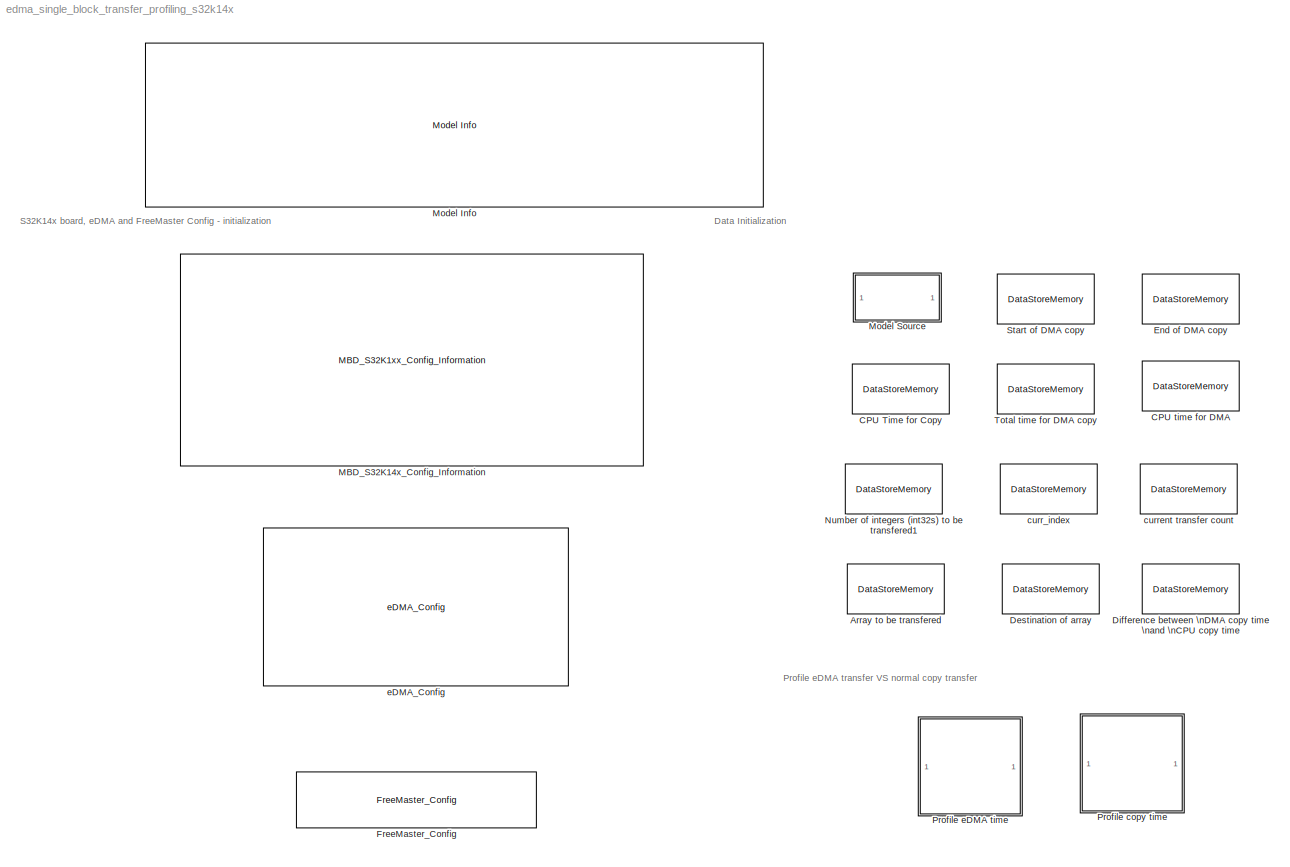
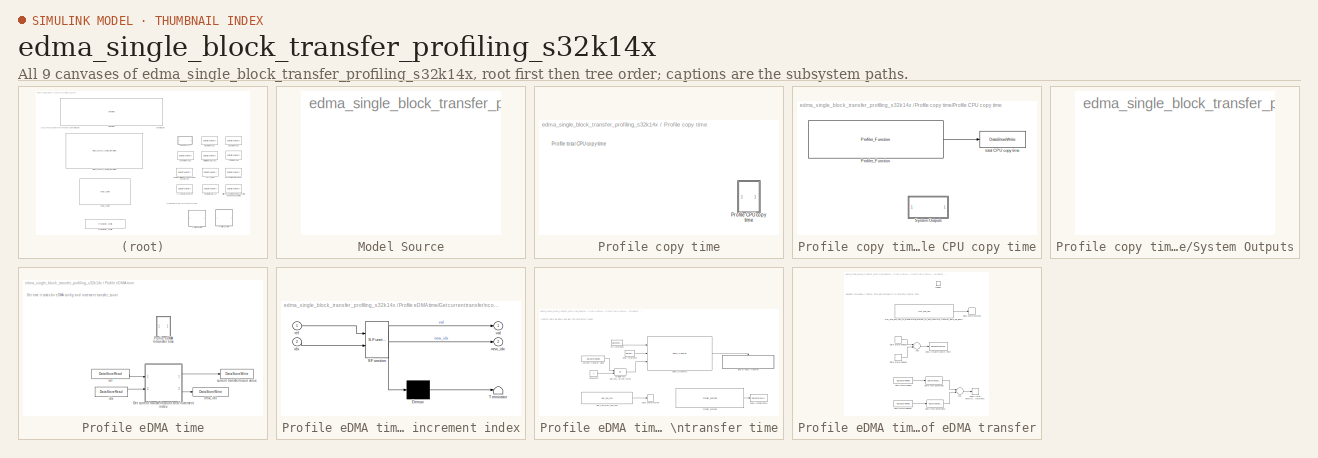
[diagram: thumbnail index - all 9 canvases of the model, root first then tree order]
MODEL edma_single_block_transfer_profiling_s32k14x
KIND model
CONFIG InitFcn = mbd_s32k_consistency_checks(bdroot(gcs));
BLOCK [DataStoreMemory] Array to be transfered
  DataStoreName = src
  ReadBeforeWriteMsg = warning
  SID = 134
  ShowAdditionalParam = off
  WriteAfterReadMsg = warning
  WriteAfterWriteMsg = warning
BLOCK [DataStoreMemory] CPU Time for Copy
  DataStoreName = profiler_copy_time
  OutDataTypeStr = uint32
  ReadBeforeWriteMsg = warning
  SID = 51
  ShowAdditionalParam = off
  WriteAfterReadMsg = warning
  WriteAfterWriteMsg = warning
BLOCK [DataStoreMemory] CPU time for DMA
  DataStoreName = profiler_dma_cpu
  OutDataTypeStr = uint32
  ReadBeforeWriteMsg = warning
  SID = 41
  ShowAdditionalParam = off
  WriteAfterReadMsg = warning
  WriteAfterWriteMsg = warning
BLOCK [DataStoreMemory] Destination of array
  DataStoreName = dest
  ReadBeforeWriteMsg = warning
  SID = 135
  ShowAdditionalParam = off
  WriteAfterReadMsg = warning
  WriteAfterWriteMsg = warning
BLOCK [DataStoreMemory] Difference between \nDMA copy time \nand \nCPU copy time
  DataStoreName = diff
  OutDataTypeStr = int32
  ReadBeforeWriteMsg = warning
  SID = 138
  ShowAdditionalParam = off
  WriteAfterReadMsg = warning
  WriteAfterWriteMsg = warning
BLOCK [DataStoreMemory] End of DMA copy
  DataStoreName = finish
  ReadBeforeWriteMsg = warning
  SID = 112
  ShowAdditionalParam = off
  WriteAfterReadMsg = warning
  WriteAfterWriteMsg = warning
BLOCK [Reference] FreeMaster_Config  REF=mbd_s32k1xx_ec_toolbox/Utility Blocks/FreeMaster_Config
  Ports = []
  SID = 40
  SourceBlock = mbd_s32k1xx_ec_toolbox/Utility Blocks/FreeMaster_Config
  SourceType = fm_s32k_config
  baudrate = 115200
  comm_buffer_size = 255
  comm_buffer_size_auto = on
  comm_rqueue_size = 32
  comm_rqueue_size_default = on
  interface = LPUART1
  isr_prio = 5
  max_rec_vars = 8
  max_scope_vars = 8
  mode = Short Interrupt
  rec_buff_size = 1024
  rec_timebase = 0
  rec_timebase_unit = milliseconds
  rxd = PTC6: [LPUART1_RX | Receive]
  show_adv_opts = on
  txd = PTC7: [LPUART1_TX | Transmit]
  use_recorder = on
  use_scope = on
BLOCK [Reference] MBD_S32K14x_Config_Information  REF=mbd_s32k1xx_ec_toolbox/MBD_S32K1xx_Config_Information
  ADC_PcrCheckEnDis = on
  AMMCLIB_PcrCheckEnDis = on
  CMP_PcrCheckEnDis = on
  CSEc_PcrCheckEnDis = on
  ConfigParams_PcrCheckEnDis = on
  FM_PcrCheckEnDis = on
  FTM_Dual_Edge_Inputs_PcrCheckEnDis = on
  FTM_Hall_Sensor_Inputs_PcrCheckEnDis = on
  FTM_Input_Edge_Inputs_PcrCheckEnDis = on
  FTM_PWM_PcrCheckEnDis = on
  FTM_Quadrature_Inputs_PcrCheckEnDis = on
  FlexCAN_PcrCheckEnDis = on
  FlexIO_PcrCheckEnDis = on
  GPIO_InputPcrCheckEnDis = on
  GPIO_OutputPcrCheckEnDis = on
  LIN_PcrCheckEnDis = on
  LPI2C_PcrCheckEnDis = on
  LPSPI_PcrCheckEnDis = on
  LPTMR_PcrCheckEnDis = on
  LPUART_PcrCheckEnDis = on
  ModelRef_PcrCheckEnDis = on
  PDB0_PcrCheckEnDis = on
  PIT_PcrCheckEnDis = on
  Ports = []
  Priority = 1
  Profile_PcrCheckEnDis = on
  RTC_PcrCheckEnDis = on
  SBC_PcrCheckEnDis = on
  SID = 2
  SourceBlock = mbd_s32k1xx_ec_toolbox/MBD_S32K1xx_Config_Information
  SourceType = MBDTBX_EC_S32K
  WDOG_PcrCheckEnDis = on
  config_params = []
  disp_str = Target : S32K144-64KB_SRAM\nPackage : 100-pin\nSystem clock : 80 MHz\nXTAL clock : External 8 MHz\nCompiler : GCC\nTarget Type : FLASH\nDownload Code after build : off\nStep Tick Interrupt Priority : 15
  ds_import_enable = on
  eDMA_PcrCheckEnDis = on
  gcc_target_assemble_opts = -mcpu=cortex-m4 -mthumb -mfloat-abi=hard -mfpu=fpv4-sp-d16 -g
  gcc_target_compile_opts = -mcpu=cortex-m4 -mthumb -mfloat-abi=hard -mfpu=fpv4-sp-d16 -O1 -g -gstrict-dwarf
  gcc_target_default_lcf = on
  gcc_target_link_opts = -mcpu=cortex-m4 -mthumb -mfloat-abi=hard -mfpu=fpv4-sp-d16
  gcc_target_user_lcf = S32K144_64_flash.ld
  ghs_target_assemble_opts = -cpu=cortexm4f -fpu=vfpv4_d16
  ghs_target_compile_opts = -cpu=cortexm4f -thumb -DARM_MATH_CM4 -fpu=vfpv4_d16 -fsingle -Ogeneral -Wundef -Wimplicit-int -Wshadow -Wtrigraphs --no_commons --gnu_asm -gnu99 -gdwarf-2 -G
  ghs_target_default_lcf = off
  ghs_target_link_opts = -cpu=cortexm4f -thumb -fpu=vfpv4_d16
  ghs_target_user_lcf = S32K144_64_flash.ld
  iar_target_assemble_opts = --cpu Cortex-M4F --thumb --fpu VFPv4_sp
  iar_target_compile_opts = --cpu=Cortex-M4F --thumb --fpu=VFPv4_sp -Ol -e --debug --dlib_config normal
  iar_target_default_lcf = off
  iar_target_link_opts = --no_exceptions --vfe --inline
  iar_target_user_lcf = S32K144_64_flash.icf
  mbdt_ver = 0
  mcu_steptick_prio = 15
  mcu_steptick_timer = LPIT Channel 0
  mcu_system_clock_freq = 80
  mcu_target_name = S32K144
  mcu_target_package = 100-LQFP
  mcu_target_sram_size = 64KB
  mcu_xtal_freq = External 8
  pil_download_enable = off
  pil_download_rate = 57600
  pil_opensda_drive = Custom
  pil_opensda_drive_custom = D
  pil_uart_instance = 0
  pil_uart_rx = PTA2: [LPUART0_RX | Receive]
  pil_uart_tx = PTA3: [LPUART0_TX | Transmit]
  rbl_com_port = Custom
  rbl_com_port_custom = COM1
  rbl_download_enable = on
  rbl_download_interface = OpenSDA
  rbl_restart_request = off
  rbl_start_delay = 5000000
  target_compiler = GCC
  target_memory = FLASH
BLOCK [Reference] Model Info  REF=simulink/Model-Wide\nUtilities/Model Info
  DisplayStringWithTags = Model Name: %<ModelName>\n\nDescription: %<Description>
  Frame = off
  HorizontalTextAlignment = Left
  LeftAlignmentValue = 0.02
  MaskDisplayString = Model Name: edma_single_block_transfer_profiling_s32k14x\\n\\nDescription: Comparison betwen data transfer using eDMA and normal cpu copy.\\n\\nTransfer sizes used are as follows:\\n4, 8, 16, 32, 64, 128, 256, 512, 768, 1024 uint32s (multiply by 4 to get number of bytes)\\n\\nTransfer size is changed at every step, iterating circulary over this list.\\n\\nVerification:\\nOpen freeMaster project (h...<+86ch>
  Ports = []
  SID = 183
  SourceBlock = simulink/Model-Wide\nUtilities/Model Info
  SourceProductBaseCode = SL
  SourceProductName = Simulink
  SourceType = CMBlock
BLOCK [SubSystem] Model Source
  CopyFcn = cccopyfcn(gcb)
  OpenFcn = ccopenfcn('Model Source')
  Ports = []
  RequestExecContextInheritance = off
  SID = 53
  Variant = off
BLOCK [DataStoreMemory] Number of integers (int32s) to be transfered1
  DataStoreName = transfer_count_ref
  InitialValue = [4,8,16,32,64,128,256,512,768,1024]
  OutDataTypeStr = uint32
  ReadBeforeWriteMsg = warning
  SID = 157
  ShowAdditionalParam = off
  WriteAfterReadMsg = warning
  WriteAfterWriteMsg = warning
BLOCK [SubSystem] Profile copy time
  Ports = []
  Priority = 2
  RequestExecContextInheritance = off
  SID = 44
  Variant = off
BLOCK [SubSystem] Profile copy time/Profile CPU copy time
  Ports = []
  RTWSystemCode = Reusable function
  RequestExecContextInheritance = off
  SID = 78
  TreatAsAtomicUnit = on
  Variant = off
BLOCK [Reference] Profile copy time/Profile CPU copy time/Profiler_Function  REF=mbd_s32k1xx_ec_toolbox/Utility Blocks/Profiler_Function
  Ports = [0, 1]
  Priority = 1
  SID = 90
  SourceBlock = mbd_s32k1xx_ec_toolbox/Utility Blocks/Profiler_Function
  SourceType = profiler_s32k_func
  profile_indx = 2
  showOut = on
BLOCK [SubSystem] Profile copy time/Profile CPU copy time/System Outputs
  CopyFcn = cccopyfcn(gcb)
  FunctionInterfaceSpec = Allow arguments
  FunctionWithSeparateData = on
  OpenFcn = ccopenfcn('System Outputs Function')
  Ports = []
  Priority = 12
  RTWSystemCode = Reusable function
  RequestExecContextInheritance = off
  SID = 81
  Variant = off
BLOCK [DataStoreWrite] Profile copy time/Profile CPU copy time/total CPU copy time
  DataStoreName = profiler_copy_time
  Ports = [1]
  Priority = 15
  SID = 48
BLOCK [SubSystem] Profile eDMA time
  FunctionWithSeparateData = on
  Ports = []
  Priority = 3
  RTWSystemCode = Nonreusable function
  RequestExecContextInheritance = off
  SID = 84
  Variant = off
BLOCK [SubSystem] Profile eDMA time/Get current transfer\ncount and increment index
  ErrorFcn = Stateflow.Translate.translate
  PermitHierarchicalResolution = ExplicitOnly
  Ports = [2, 2]
  RequestExecContextInheritance = off
  SFBlockType = MATLAB Function
  SID = 104
  TreatAsAtomicUnit = on
  Variant = off
BLOCK [Demux] Profile eDMA time/Get current transfer\ncount and increment index/ Demux 
  Outputs = 1
  Ports = [1, 1]
  SID = 104::34
BLOCK [S-Function] Profile eDMA time/Get current transfer\ncount and increment index/ SFunction 
  EnableBusSupport = off
  FunctionName = sf_sfun
  PortCounts = [2 3]
  Ports = [2, 3]
  SFcnIsStateOwnerBlock = off
  SFunctionDeploymentMode = off
  SID = 104::33
  Tag = Stateflow S-Function edma_single_block_transfer_profiling_s32k14x 2
BLOCK [Terminator] Profile eDMA time/Get current transfer\ncount and increment index/ Terminator 
  SID = 104::35
BLOCK [Inport] Profile eDMA time/Get current transfer\ncount and increment index/idx
  IconDisplay = Port number
  Port = 2
  SID = 104::19
BLOCK [Outport] Profile eDMA time/Get current transfer\ncount and increment index/new_idx
  IconDisplay = Port number
  Port = 2
  SID = 104::20
BLOCK [Inport] Profile eDMA time/Get current transfer\ncount and increment index/ref
  IconDisplay = Port number
  SID = 104::1
BLOCK [Outport] Profile eDMA time/Get current transfer\ncount and increment index/val
  IconDisplay = Port number
  SID = 104::5
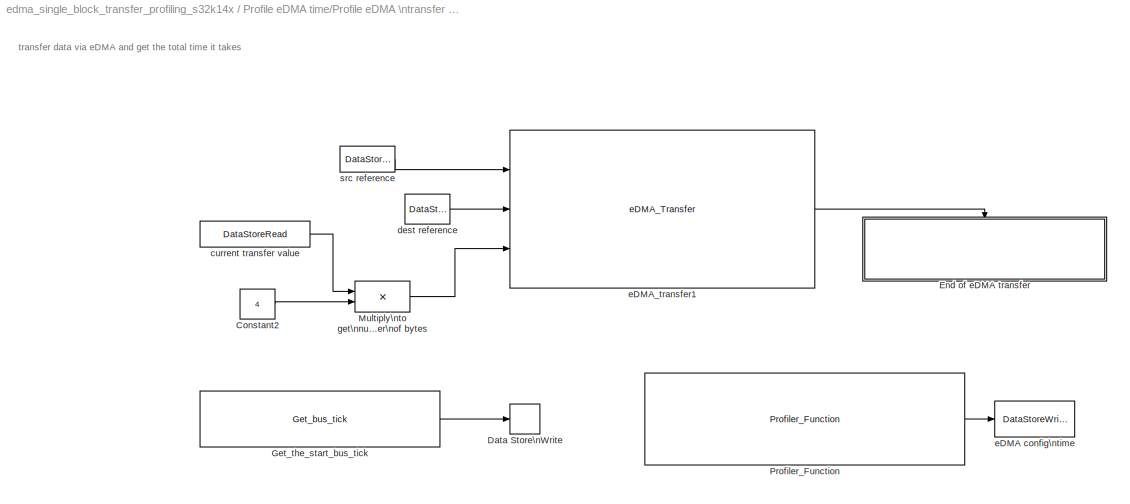
BLOCK [SubSystem] Profile eDMA time/Profile eDMA \ntransfer time
  FunctionWithSeparateData = on
  Ports = []
  RTWSystemCode = Nonreusable function
  RequestExecContextInheritance = off
  SID = 43
  TreatAsAtomicUnit = on
  Variant = off
BLOCK [Constant] Profile eDMA time/Profile eDMA \ntransfer time/Constant2
  OutDataTypeStr = uint32
  SID = 18
  Value = 4
BLOCK [DataStoreWrite] Profile eDMA time/Profile eDMA \ntransfer time/Data Store\nWrite
  DataStoreName = start
  Ports = [1]
  SID = 114
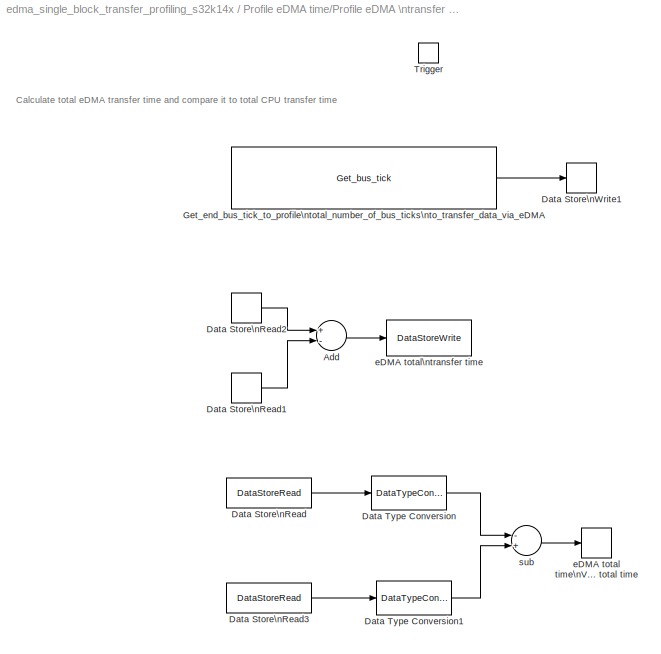
BLOCK [SubSystem] Profile eDMA time/Profile eDMA \ntransfer time/End of eDMA transfer
  Ports = [0, 0, 0, 1]
  RequestExecContextInheritance = off
  SID = 106
  Variant = off
BLOCK [Sum] Profile eDMA time/Profile eDMA \ntransfer time/End of eDMA transfer/Add
  InputSameDT = off
  Inputs = +-
  OutDataTypeStr = Inherit: Inherit via internal rule
  Ports = [2, 1]
  Priority = 5
  SID = 120
  SaturateOnIntegerOverflow = off
BLOCK [DataStoreRead] Profile eDMA time/Profile eDMA \ntransfer time/End of eDMA transfer/Data Store\nRead
  DataStoreName = dma_copy_time
  Ports = [0, 1]
  SID = 141
BLOCK [DataStoreRead] Profile eDMA time/Profile eDMA \ntransfer time/End of eDMA transfer/Data Store\nRead1
  DataStoreName = start
  Ports = [0, 1]
  SID = 118
BLOCK [DataStoreRead] Profile eDMA time/Profile eDMA \ntransfer time/End of eDMA transfer/Data Store\nRead2
  DataStoreName = finish
  Ports = [0, 1]
  SID = 119
BLOCK [DataStoreRead] Profile eDMA time/Profile eDMA \ntransfer time/End of eDMA transfer/Data Store\nRead3
  DataStoreName = profiler_copy_time
  Ports = [0, 1]
  SID = 143
BLOCK [DataStoreWrite] Profile eDMA time/Profile eDMA \ntransfer time/End of eDMA transfer/Data Store\nWrite1
  DataStoreName = finish
  Ports = [1]
  SID = 131
BLOCK [DataTypeConversion] Profile eDMA time/Profile eDMA \ntransfer time/End of eDMA transfer/Data Type Conversion
  OutDataTypeStr = int32
  RndMeth = Floor
  SID = 144
  SaturateOnIntegerOverflow = off
BLOCK [DataTypeConversion] Profile eDMA time/Profile eDMA \ntransfer time/End of eDMA transfer/Data Type Conversion1
  OutDataTypeStr = int32
  RndMeth = Floor
  SID = 145
  SaturateOnIntegerOverflow = off
BLOCK [Reference] Profile eDMA time/Profile eDMA \ntransfer time/End of eDMA transfer/Get_end_bus_tick_to_profile\ntotal_number_of_bus_ticks\nto_transfer_data_via_eDMA  REF=mbd_s32k1xx_ec_toolbox/Utility Blocks/Get_bus_tick
  Ports = [0, 1]
  Priority = 1
  SID = 105
  SourceBlock = mbd_s32k1xx_ec_toolbox/Utility Blocks/Get_bus_tick
  SourceType = get_bus_tick_s32k_func
BLOCK [TriggerPort] Profile eDMA time/Profile eDMA \ntransfer time/End of eDMA transfer/Trigger
  PortDimensions = 1
  Ports = []
  SID = 108
  StatesWhenEnabling = held
  TriggerType = function-call
  VariantControl = Variant
BLOCK [DataStoreWrite] Profile eDMA time/Profile eDMA \ntransfer time/End of eDMA transfer/eDMA total time\nVS\nCPU copy total time
  DataStoreName = diff
  Ports = [1]
  SID = 140
BLOCK [DataStoreWrite] Profile eDMA time/Profile eDMA \ntransfer time/End of eDMA transfer/eDMA total\ntransfer time
  DataStoreName = dma_copy_time
  Ports = [1]
  SID = 123
BLOCK [Sum] Profile eDMA time/Profile eDMA \ntransfer time/End of eDMA transfer/sub
  InputSameDT = off
  Inputs = -+
  OutDataTypeStr = Inherit: Inherit via internal rule
  Ports = [2, 1]
  Priority = 5
  SID = 142
  SaturateOnIntegerOverflow = off
BLOCK [Reference] Profile eDMA time/Profile eDMA \ntransfer time/Get_the_start_bus_tick  REF=mbd_s32k1xx_ec_toolbox/Utility Blocks/Get_bus_tick
  Ports = [0, 1]
  Priority = 1
  SID = 109
  SourceBlock = mbd_s32k1xx_ec_toolbox/Utility Blocks/Get_bus_tick
  SourceType = get_bus_tick_s32k_func
BLOCK [Product] Profile eDMA time/Profile eDMA \ntransfer time/Multiply\nto get\nnumber\nof bytes
  InputSameDT = off
  OutDataTypeStr = uint32
  Ports = [2, 1]
  Priority = 2
  RndMeth = Floor
  SID = 103
  SaturateOnIntegerOverflow = off
BLOCK [Reference] Profile eDMA time/Profile eDMA \ntransfer time/Profiler_Function  REF=mbd_s32k1xx_ec_toolbox/Utility Blocks/Profiler_Function
  Ports = [0, 1]
  SID = 25
  SourceBlock = mbd_s32k1xx_ec_toolbox/Utility Blocks/Profiler_Function
  SourceType = profiler_s32k_func
  profile_indx = 0
  showOut = on
BLOCK [DataStoreRead] Profile eDMA time/Profile eDMA \ntransfer time/current transfer value
  DataStoreName = transfer_count_val
  Ports = [0, 1]
  SID = 169
BLOCK [DataStoreRead] Profile eDMA time/Profile eDMA \ntransfer time/dest reference
  DataStoreName = dest
  Ports = [0, 1]
  Priority = 2
  SID = 175
BLOCK [DataStoreWrite] Profile eDMA time/Profile eDMA \ntransfer time/eDMA config\ntime
  DataStoreName = profiler_dma_cpu
  Ports = [1]
  SID = 42
BLOCK [Reference] Profile eDMA time/Profile eDMA \ntransfer time/eDMA_transfer1  REF=mbd_s32k1xx_ec_toolbox/Core and System Blocks/DMA Blocks/eDMA_Transfer
  Ports = [3, 1]
  Priority = 5
  SID = 14
  SourceBlock = mbd_s32k1xx_ec_toolbox/Core and System Blocks/DMA Blocks/eDMA_Transfer
  SourceType = edma_s32k_transfer
  bytes_on_each_req = 4
  channel = 0
  dest_list = {PTD_BASE + 0xc, 0x400FF0CC}
  dest_list_type = Address list
  dest_periph1 = ADC0
  dest_periph2 = ADC0
  dest_periph3 = ADC0
  dest_periph4 = ADC0
  dest_periph5 = ADC0
  dest_periph6 = ADC0
  dest_periph7 = ADC0
  dest_periph8 = ADC0
  dest_reg1 = SC1A
  dest_reg1_addr = 0x4003B000
  dest_reg1enable = off
  dest_reg1offset = 0
  dest_reg2 = SC1A
  dest_reg2_addr = 0x4003B000
  dest_reg2enable = off
  dest_reg2offset = 0
  dest_reg3 = SC1A
  dest_reg3_addr = 0x4003B000
  dest_reg3enable = off
  dest_reg3offset = 0
  dest_reg4 = SC1A
  dest_reg4_addr = 0x4003B000
  dest_reg4enable = off
  dest_reg4offset = 0
  dest_reg5 = SC1A
  dest_reg5_addr = 0x4003B000
  dest_reg5enable = off
  dest_reg5offset = 0
  dest_reg6 = SC1A
  dest_reg6_addr = 0x4003B000
  dest_reg6enable = off
  dest_reg6offset = 0
  dest_reg7 = SC1A
  dest_reg7_addr = 0x4003B000
  dest_reg7enable = off
  dest_reg7offset = 0
  dest_reg8 = SC1A
  dest_reg8_addr = 0x4003B000
  dest_reg8enable = off
  dest_reg8offset = 0
  sg_struct_size = 32
  single_block_dest_type = Dest input is an address
  single_block_src_type = Src input is an address
  src_list = {32768, 1}
  src_list_type = Value list
  src_periph1 = ADC0
  src_periph2 = ADC0
  src_periph3 = ADC0
  src_periph4 = ADC0
  src_periph5 = ADC0
  src_periph6 = ADC0
  src_periph7 = ADC0
  src_periph8 = ADC0
  src_reg1 = SC1A
  src_reg1_addr = 0x4003B000
  src_reg1enable = off
  src_reg1offset = 0
  src_reg2 = SC1A
  src_reg2_addr = 0x4003B000
  src_reg2enable = off
  src_reg2offset = 0
  src_reg3 = SC1A
  src_reg3_addr = 0x4003B000
  src_reg3enable = off
  src_reg3offset = 0
  src_reg4 = SC1A
  src_reg4_addr = 0x4003B000
  src_reg4enable = off
  src_reg4offset = 0
  src_reg5 = SC1A
  src_reg5_addr = 0x4003B000
  src_reg5enable = off
  src_reg5offset = 0
  src_reg6 = SC1A
  src_reg6_addr = 0x4003B000
  src_reg6enable = off
  src_reg6offset = 0
  src_reg7 = SC1A
  src_reg7_addr = 0x4003B000
  src_reg7enable = off
  src_reg7offset = 0
  src_reg8 = SC1A
  src_reg8_addr = 0x4003B000
  src_reg8enable = off
  src_reg8offset = 0
  transfer_mode = Single Block Transfer
  transfer_size = EDMA_TRANSFER_SIZE_4B
  transfer_type = EDMA_TRANSFER_MEM2MEM
BLOCK [DataStoreRead] Profile eDMA time/Profile eDMA \ntransfer time/src reference
  DataStoreName = src
  Ports = [0, 1]
  Priority = 2
  SID = 136
BLOCK [DataStoreWrite] Profile eDMA time/current transfer\ncout value
  DataStoreName = transfer_count_val
  Ports = [1]
  SID = 164
BLOCK [DataStoreRead] Profile eDMA time/idx
  DataStoreName = transfer_count_idx
  Ports = [0, 1]
  SID = 94
BLOCK [DataStoreWrite] Profile eDMA time/new_idx
  DataStoreName = transfer_count_idx
  Ports = [1]
  SID = 165
BLOCK [DataStoreRead] Profile eDMA time/ref
  DataStoreName = transfer_count_ref
  Ports = [0, 1]
  SID = 166
BLOCK [DataStoreMemory] Start of DMA copy
  DataStoreName = start
  ReadBeforeWriteMsg = warning
  SID = 111
  ShowAdditionalParam = off
  WriteAfterReadMsg = warning
  WriteAfterWriteMsg = warning
BLOCK [DataStoreMemory] Total time for DMA copy
  DataStoreName = dma_copy_time
  ReadBeforeWriteMsg = warning
  SID = 121
  ShowAdditionalParam = off
  WriteAfterReadMsg = warning
  WriteAfterWriteMsg = warning
BLOCK [DataStoreMemory] curr_index
  DataStoreName = transfer_count_idx
  OutDataTypeStr = uint32
  ReadBeforeWriteMsg = warning
  SID = 158
  ShowAdditionalParam = off
  WriteAfterReadMsg = warning
  WriteAfterWriteMsg = warning
BLOCK [DataStoreMemory] current transfer count
  DataStoreName = transfer_count_val
  OutDataTypeStr = uint32
  ReadBeforeWriteMsg = warning
  SID = 159
  ShowAdditionalParam = off
  WriteAfterReadMsg = warning
  WriteAfterWriteMsg = warning
BLOCK [Reference] eDMA_Config  REF=mbd_s32k1xx_ec_toolbox/Core and System Blocks/DMA Blocks/eDMA_Config
  Ports = []
  Priority = 2
  SID = 1
  SourceBlock = mbd_s32k1xx_ec_toolbox/Core and System Blocks/DMA Blocks/eDMA_Config
  SourceType = edma_s32k_config
  arbitration = EDMA_ARBITRATION_FIXED_PRIORITY
  channel = 0
  channel0enable = on
  channel0priority = EDMA_CHN_DEFAULT_PRIORITY
  channel0requestsource = EDMA_REQ_DISABLED
  channel10enable = off
  channel10priority = EDMA_CHN_DEFAULT_PRIORITY
  channel10requestsource = EDMA_REQ_DISABLED
  channel11enable = off
  channel11priority = EDMA_CHN_DEFAULT_PRIORITY
  channel11requestsource = EDMA_REQ_DISABLED
  channel12enable = off
  channel12priority = EDMA_CHN_DEFAULT_PRIORITY
  channel12requestsource = EDMA_REQ_DISABLED
  channel13enable = off
  channel13priority = EDMA_CHN_DEFAULT_PRIORITY
  channel13requestsource = EDMA_REQ_DISABLED
  channel14enable = off
  channel14priority = EDMA_CHN_DEFAULT_PRIORITY
  channel14requestsource = EDMA_REQ_DISABLED
  channel15enable = off
  channel15priority = EDMA_CHN_DEFAULT_PRIORITY
  channel15requestsource = EDMA_REQ_DISABLED
  channel1enable = on
  channel1priority = EDMA_CHN_DEFAULT_PRIORITY
  channel1requestsource = EDMA_REQ_DISABLED
  channel2enable = off
  channel2priority = EDMA_CHN_DEFAULT_PRIORITY
  channel2requestsource = EDMA_REQ_DISABLED
  channel3enable = off
  channel3priority = EDMA_CHN_DEFAULT_PRIORITY
  channel3requestsource = EDMA_REQ_DISABLED
  channel4enable = off
  channel4priority = EDMA_CHN_DEFAULT_PRIORITY
  channel4requestsource = EDMA_REQ_DISABLED
  channel5enable = off
  channel5priority = EDMA_CHN_DEFAULT_PRIORITY
  channel5requestsource = EDMA_REQ_DISABLED
  channel6enable = off
  channel6priority = EDMA_CHN_DEFAULT_PRIORITY
  channel6requestsource = EDMA_REQ_DISABLED
  channel7enable = off
  channel7priority = EDMA_CHN_DEFAULT_PRIORITY
  channel7requestsource = EDMA_REQ_DISABLED
  channel8enable = off
  channel8priority = EDMA_CHN_DEFAULT_PRIORITY
  channel8requestsource = EDMA_REQ_DISABLED
  channel9enable = off
  channel9priority = EDMA_CHN_DEFAULT_PRIORITY
  channel9requestsource = EDMA_REQ_DISABLED
  channel_advanced_checkbox = on
  halt_on_error = false
  show_advanced_tab = on
  show_enabled = on
ANNOTATION (root): Data Initialization\n
ANNOTATION (root): Profile eDMA transfer VS normal copy transfer
ANNOTATION (root): S32K14x board, eDMA and FreeMaster Config - initialization
ANNOTATION Profile copy time: Profile total CPU copy time
ANNOTATION Profile eDMA time: Get time it takes for eDMA config and increment transfer_count
ANNOTATION Profile eDMA time/Profile eDMA \ntransfer time: transfer data via eDMA and get the total time it takes
ANNOTATION Profile eDMA time/Profile eDMA \ntransfer time/End of eDMA transfer: Calculate total eDMA transfer time and compare it to total CPU transfer time
LINE Profile copy time/Profile CPU copy time/Profiler_Function:1 -> Profile copy time/Profile CPU copy time/total CPU copy time:1
LINE Profile eDMA time/Get current transfer\ncount and increment index/ Demux :1 -> Profile eDMA time/Get current transfer\ncount and increment index/ Terminator :1
LINE Profile eDMA time/Get current transfer\ncount and increment index/ SFunction :1 -> Profile eDMA time/Get current transfer\ncount and increment index/ Demux :1
LINE Profile eDMA time/Get current transfer\ncount and increment index/ SFunction :2 -> Profile eDMA time/Get current transfer\ncount and increment index/val:1
LINE Profile eDMA time/Get current transfer\ncount and increment index/ SFunction :3 -> Profile eDMA time/Get current transfer\ncount and increment index/new_idx:1
LINE Profile eDMA time/Get current transfer\ncount and increment index/idx:1 -> Profile eDMA time/Get current transfer\ncount and increment index/ SFunction :2
LINE Profile eDMA time/Get current transfer\ncount and increment index/ref:1 -> Profile eDMA time/Get current transfer\ncount and increment index/ SFunction :1
LINE Profile eDMA time/Get current transfer\ncount and increment index:1 -> Profile eDMA time/current transfer\ncout value:1
LINE Profile eDMA time/Get current transfer\ncount and increment index:2 -> Profile eDMA time/new_idx:1
LINE Profile eDMA time/Profile eDMA \ntransfer time/Constant2:1 -> Profile eDMA time/Profile eDMA \ntransfer time/Multiply\nto get\nnumber\nof bytes:2
LINE Profile eDMA time/Profile eDMA \ntransfer time/End of eDMA transfer/Add:1 -> Profile eDMA time/Profile eDMA \ntransfer time/End of eDMA transfer/eDMA total\ntransfer time:1
LINE Profile eDMA time/Profile eDMA \ntransfer time/End of eDMA transfer/Data Store\nRead1:1 -> Profile eDMA time/Profile eDMA \ntransfer time/End of eDMA transfer/Add:2
LINE Profile eDMA time/Profile eDMA \ntransfer time/End of eDMA transfer/Data Store\nRead2:1 -> Profile eDMA time/Profile eDMA \ntransfer time/End of eDMA transfer/Add:1
LINE Profile eDMA time/Profile eDMA \ntransfer time/End of eDMA transfer/Data Store\nRead3:1 -> Profile eDMA time/Profile eDMA \ntransfer time/End of eDMA transfer/Data Type Conversion1:1
LINE Profile eDMA time/Profile eDMA \ntransfer time/End of eDMA transfer/Data Store\nRead:1 -> Profile eDMA time/Profile eDMA \ntransfer time/End of eDMA transfer/Data Type Conversion:1
LINE Profile eDMA time/Profile eDMA \ntransfer time/End of eDMA transfer/Data Type Conversion1:1 -> Profile eDMA time/Profile eDMA \ntransfer time/End of eDMA transfer/sub:2
LINE Profile eDMA time/Profile eDMA \ntransfer time/End of eDMA transfer/Data Type Conversion:1 -> Profile eDMA time/Profile eDMA \ntransfer time/End of eDMA transfer/sub:1
LINE Profile eDMA time/Profile eDMA \ntransfer time/End of eDMA transfer/Get_end_bus_tick_to_profile\ntotal_number_of_bus_ticks\nto_transfer_data_via_eDMA:1 -> Profile eDMA time/Profile eDMA \ntransfer time/End of eDMA transfer/Data Store\nWrite1:1
LINE Profile eDMA time/Profile eDMA \ntransfer time/End of eDMA transfer/sub:1 -> Profile eDMA time/Profile eDMA \ntransfer time/End of eDMA transfer/eDMA total time\nVS\nCPU copy total time:1
LINE Profile eDMA time/Profile eDMA \ntransfer time/Get_the_start_bus_tick:1 -> Profile eDMA time/Profile eDMA \ntransfer time/Data Store\nWrite:1
LINE Profile eDMA time/Profile eDMA \ntransfer time/Multiply\nto get\nnumber\nof bytes:1 -> Profile eDMA time/Profile eDMA \ntransfer time/eDMA_transfer1:3
LINE Profile eDMA time/Profile eDMA \ntransfer time/Profiler_Function:1 -> Profile eDMA time/Profile eDMA \ntransfer time/eDMA config\ntime:1
LINE Profile eDMA time/Profile eDMA \ntransfer time/current transfer value:1 -> Profile eDMA time/Profile eDMA \ntransfer time/Multiply\nto get\nnumber\nof bytes:1
LINE Profile eDMA time/Profile eDMA \ntransfer time/dest reference:1 -> Profile eDMA time/Profile eDMA \ntransfer time/eDMA_transfer1:2
LINE Profile eDMA time/Profile eDMA \ntransfer time/eDMA_transfer1:1 -> Profile eDMA time/Profile eDMA \ntransfer time/End of eDMA transfer:trigger
LINE Profile eDMA time/Profile eDMA \ntransfer time/src reference:1 -> Profile eDMA time/Profile eDMA \ntransfer time/eDMA_transfer1:1
LINE Profile eDMA time/idx:1 -> Profile eDMA time/Get current transfer\ncount and increment index:2
LINE Profile eDMA time/ref:1 -> Profile eDMA time/Get current transfer\ncount and increment index:1
CHART Profile eDMA time/Get current transfer\ncount and increment index states=1 transitions=1
  STATE_LABEL 'eML_blk_kernel()'
